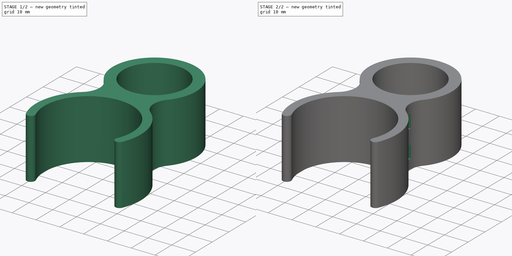
[diagram: build sequence overview — one tinted view per stage of 2, left to right]
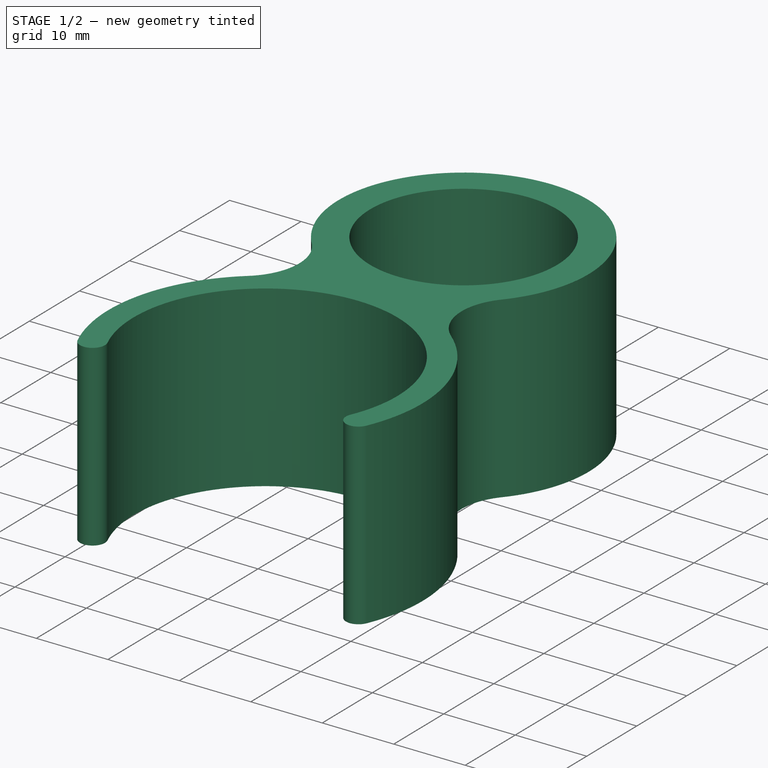
[diagram: stage 1 of 2 — iso view after this stage's code; geometry added in this stage tinted green]
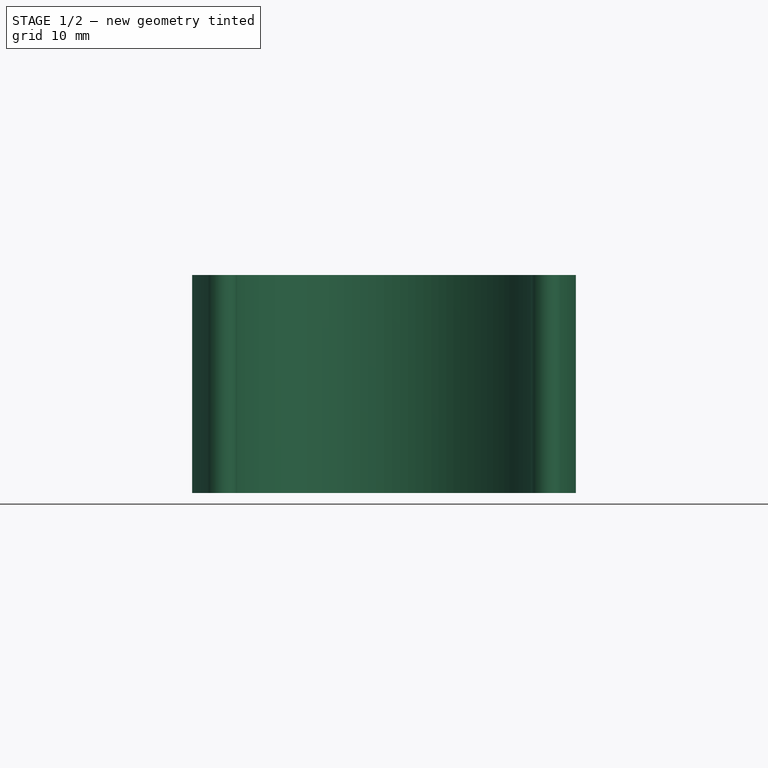
[diagram: stage 1 of 2 — front view after this stage's code; geometry added in this stage tinted green]
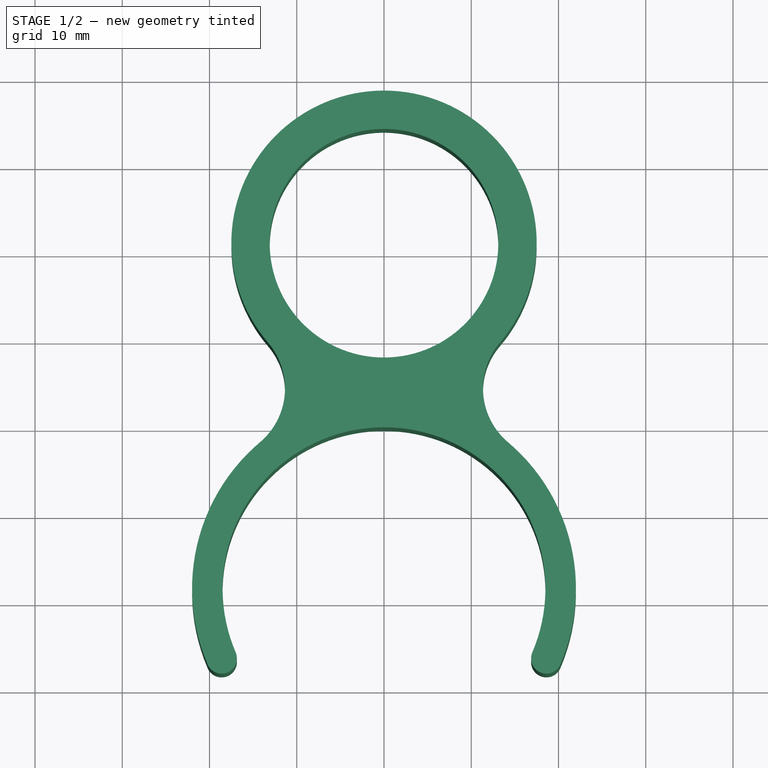
[diagram: stage 1 of 2 — top view after this stage's code; geometry added in this stage tinted green]
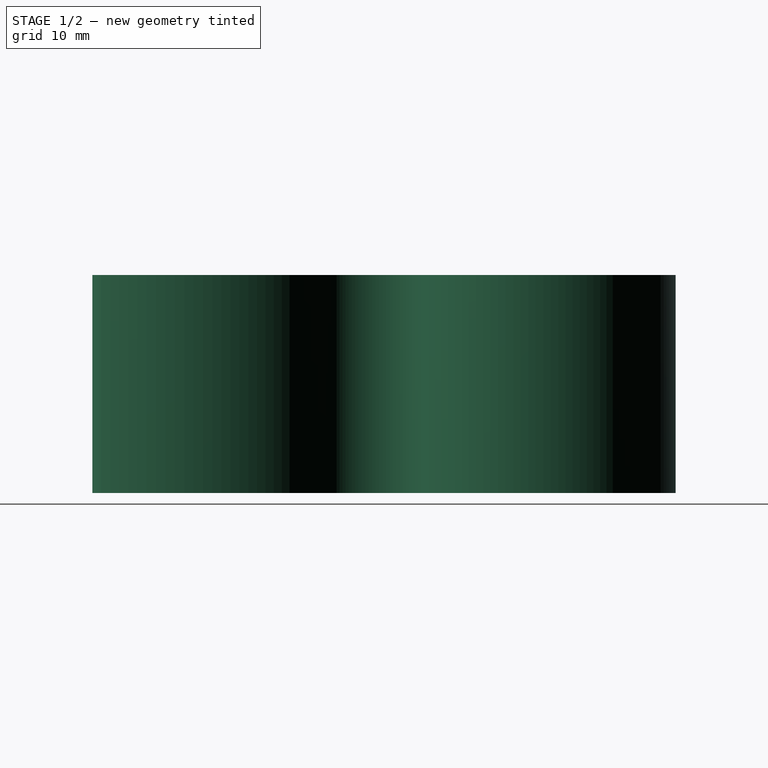
[diagram: stage 1 of 2 — right view after this stage's code; geometry added in this stage tinted green]
FCSTD DOCUMENT  (FreeCAD 0.19R20310 (Git))
Label: Klammer3
License: All rights reserved
LicenseURL: http://en.wikipedia.org/wiki/All_rights_reserved
objects: Sketcher::SketchObject×2, PartDesign::Pad×1, PartDesign::Pocket×1, PartDesign::Body×1
note: 7 computed .brp shape members not serialized (recipe doc carries the construction recipe); baked Part::Feature solids carry a one-line shape summary decoded from their .brp

FEATURE [Sketcher::SketchObject] Sketch
  MapMode = 5
  Support = -> [XY_Plane]
  sketch-geometry (11):
    g0: ArcOfCircle CenterX=2e-15 CenterY=-18.5 CenterZ=0 NormalX=0 NormalY=0 NormalZ=1 AngleXU=0 Radius=18.5 StartAngle=5.87772 EndAngle=9.83024
    g1: Circle CenterX=1e-16 CenterY=21.1 CenterZ=0 NormalX=0 NormalY=0 NormalZ=1 AngleXU=0 Radius=13.1
    g2: GeomPoint X=0 Y=0 Z=0
    g3: GeomPoint X=0 Y=8 Z=0
    g4: ArcOfCircle CenterX=-19.4182 CenterY=4.46154 CenterZ=0 NormalX=0 NormalY=0 NormalZ=1 AngleXU=0 Radius=8.07154 StartAngle=5.41437 EndAngle=6.99164
    g5: ArcOfCircle CenterX=1e-16 CenterY=21.1 CenterZ=0 NormalX=0 NormalY=0 NormalZ=1 AngleXU=0 Radius=17.5 StartAngle=5.57473 EndAngle=10.1332
    g6: ArcOfCircle CenterX=2e-15 CenterY=-18.5 CenterZ=0 NormalX=0 NormalY=0 NormalZ=1 AngleXU=0 Radius=22 StartAngle=2.27278 EndAngle=3.54706
    g7: ArcOfCircle CenterX=2e-15 CenterY=-18.5 CenterZ=0 NormalX=0 NormalY=0 NormalZ=1 AngleXU=0 Radius=22 StartAngle=5.87772 EndAngle=7.152
    g8: ArcOfCircle CenterX=19.4182 CenterY=4.46154 CenterZ=0 NormalX=0 NormalY=0 NormalZ=1 AngleXU=0 Radius=8.07154 StartAngle=2.43314 EndAngle=4.01041
    g9: ArcOfCircle CenterX=18.6081 CenterY=-26.4875 CenterZ=0 NormalX=0 NormalY=0 NormalZ=1 AngleXU=0 Radius=1.75 StartAngle=2.73613 EndAngle=5.87772
    g10: ArcOfCircle CenterX=-18.6081 CenterY=-26.4875 CenterZ=0 NormalX=0 NormalY=0 NormalZ=1 AngleXU=0 Radius=1.75 StartAngle=3.54706 EndAngle=6.68865
  constraints (25):
    c: Diameter(g1) = 26.2
    c: Diameter(g0) = 37
    c: PointOnObject(g2,g0)
    c: PointOnObject(g3,g1)
    c: PointOnObject(g3,g-2)
    c: DistanceY(g2,g3) = 8
    c: Coincident(g5,g1)
    c: Coincident(g6,g0)
    c: Coincident(g7,g0)
    c: Tangent(g4,g6) = 1.5708
    c: Tangent(g8,g7) = 1.5708
    c: Tangent(g8,g5) = 1.5708
    c: Tangent(g5,g4) = 1.5708
    c: Symmetric(g8,g4,g-2)
    c: Coincident(g2,g-1)
    c: Diameter(g5) = 35
    c: Diameter(g7) = 44
    c: Symmetric(g0,g0,g-2)
    c: Symmetric(g6,g7,g-2)
    c: DistanceX(g-1,g0) = 17
    c: Tangent(g9,g0) = 1.5708
    c: Tangent(g9,g7) = -1.5708
    c: Tangent(g10,g0) = 1.5708
    c: Tangent(g6,g10) = -1.5708
    c: Coincident(g0,g10)
FEATURE [PartDesign::Pad] Pad
  Length = 25
  Length2 = 100
  Profile = -> Sketch
  Type = 0
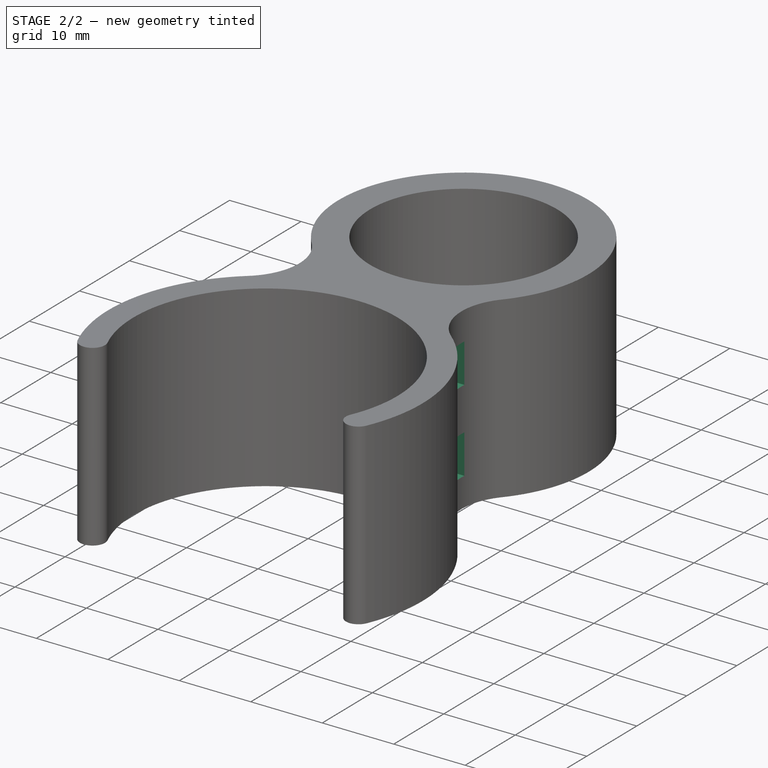
[diagram: stage 2 of 2 — iso view after this stage's code; geometry added in this stage tinted green]
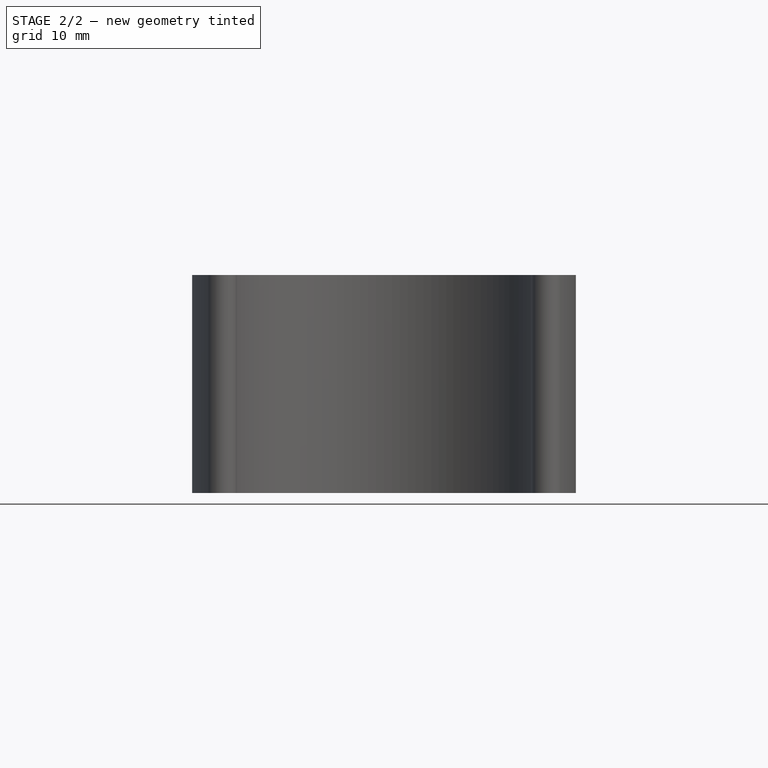
[diagram: stage 2 of 2 — front view after this stage's code; geometry added in this stage tinted green]
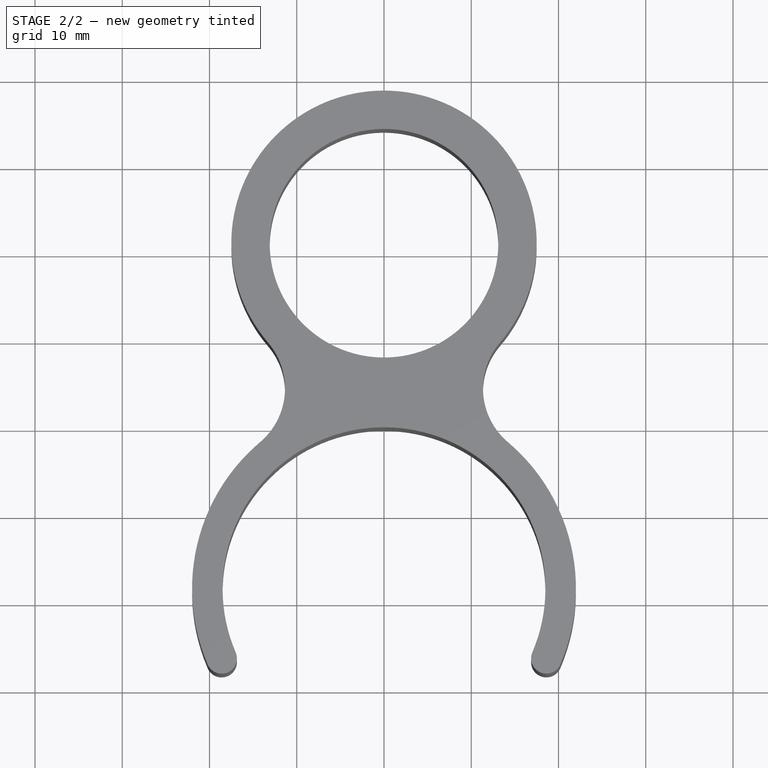
[diagram: stage 2 of 2 — top view after this stage's code; geometry added in this stage tinted green]
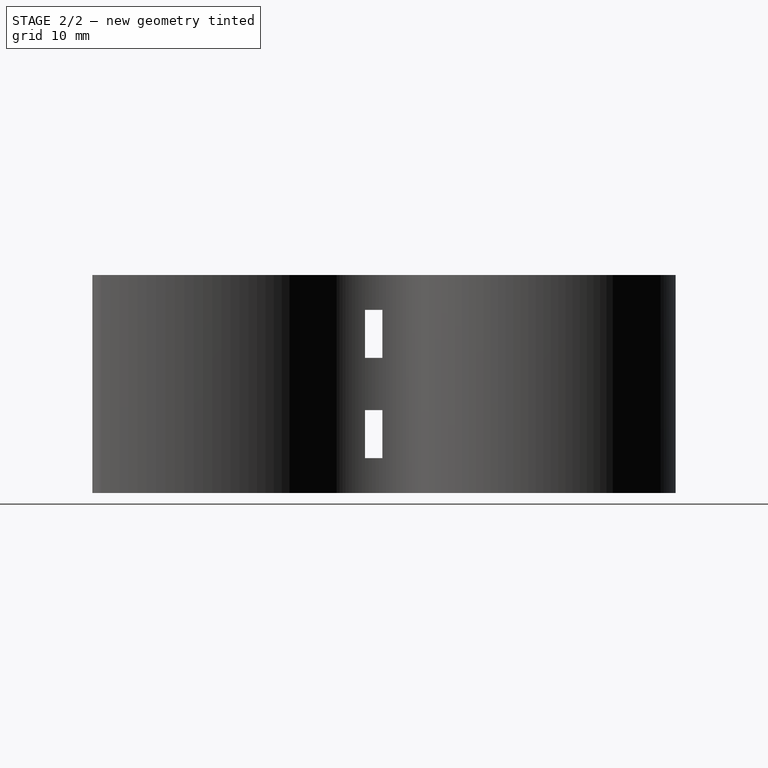
[diagram: stage 2 of 2 — right view after this stage's code; geometry added in this stage tinted green]
FEATURE [Sketcher::SketchObject] Sketch001
  MapMode = 5
  Placement = pos=(0,0,0) rot=(0.57735,0.57735,0.57735;2.0944rad)
  Support = -> [YZ_Plane]
  expr: Constraints[12] = 25 / 2
  sketch-geometry (9):
    g0: LineSegment StartX=3 StartY=9.5 StartZ=0 EndX=5 EndY=9.5 EndZ=0
    g1: LineSegment StartX=5 StartY=9.5 StartZ=0 EndX=5 EndY=4 EndZ=0
    g2: LineSegment StartX=5 StartY=4 StartZ=0 EndX=3 EndY=4 EndZ=0
    g3: LineSegment StartX=3 StartY=4 StartZ=0 EndX=3 EndY=9.5 EndZ=0
    g4: LineSegment [constr] StartX=-9.63301 StartY=12.5 StartZ=0 EndX=20.9018 EndY=12.5 EndZ=0
    g5: LineSegment StartX=3 StartY=15.5 StartZ=0 EndX=5 EndY=15.5 EndZ=0
    g6: LineSegment StartX=5 StartY=15.5 StartZ=0 EndX=5 EndY=21 EndZ=0
    g7: LineSegment StartX=5 StartY=21 StartZ=0 EndX=3 EndY=21 EndZ=0
    g8: LineSegment StartX=3 StartY=21 StartZ=0 EndX=3 EndY=15.5 EndZ=0
  constraints (22):
    c: Coincident(g0,g1)
    c: Coincident(g1,g2)
    c: Coincident(g2,g3)
    c: Coincident(g3,g0)
    c: Horizontal(g0)
    c: Horizontal(g2)
    c: Vertical(g3)
    c: DistanceY(g1,g0) = 5.5
    c: DistanceX(g0,g0) = 2
    c: Vertical(g1)
    c: DistanceX(g-1,g2) = 3
    c: Horizontal(g4)
    c: DistanceY(g-1,g4) = 12.5
    c: DistanceY(g0,g4) = 3
    c: Coincident(g5,g6)
    c: Coincident(g6,g7)
    c: Coincident(g7,g8)
    c: Coincident(g8,g5)
    c: Horizontal(g5)
    c: Horizontal(g7)
    c: Vertical(g8)
    c: Vertical(g6)
FEATURE [PartDesign::Pocket] Pocket
  BaseFeature = -> Pad
  Length = 5
  Length2 = 100
  Midplane = true
  Profile = -> Sketch001
  Type = 1
FEATURE [PartDesign::Body] Body
  Group = -> [Sketch,Pad,Sketch001,Pocket]
  Origin = -> Origin
  Tip = -> Pocket
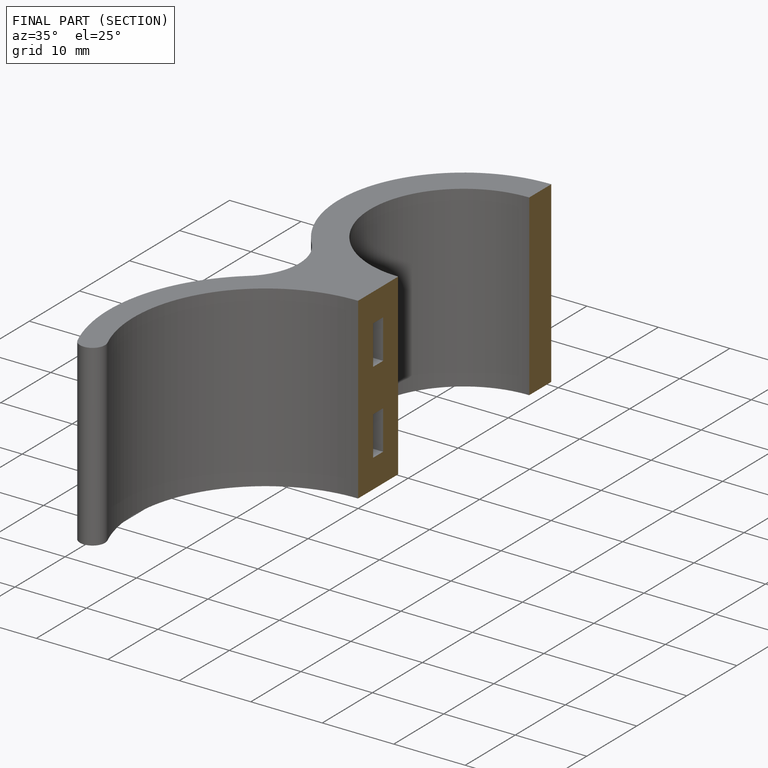
[diagram: finished part — half-section view (interior)]
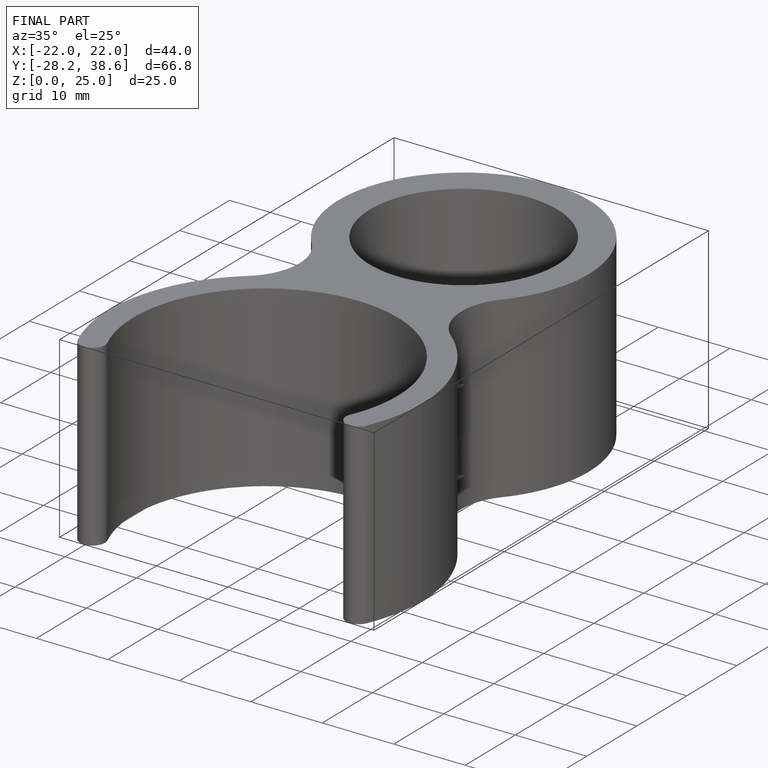
[diagram: finished part — iso view with bounding-box wireframe]
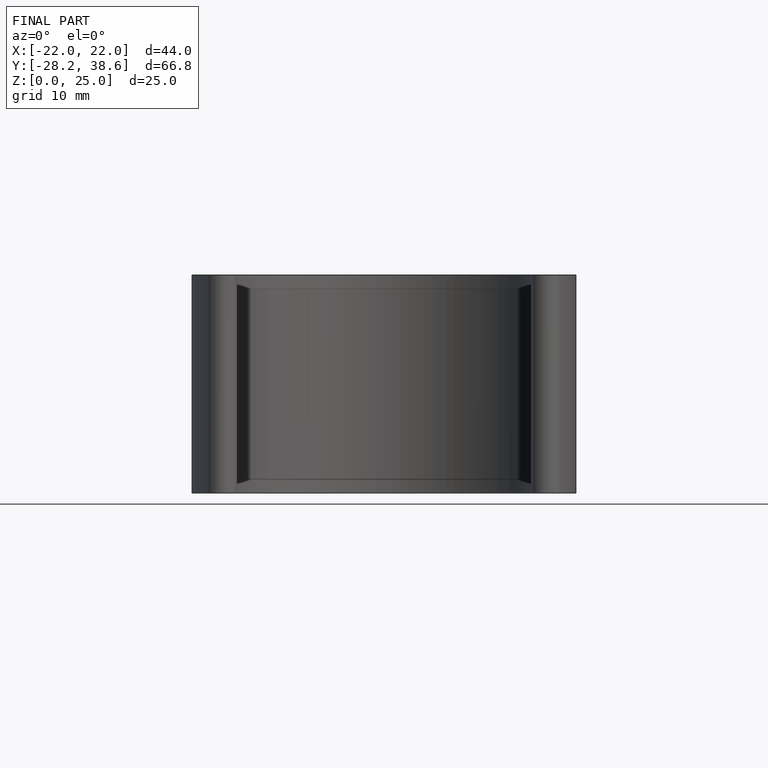
[diagram: finished part — front view with bounding-box wireframe]
